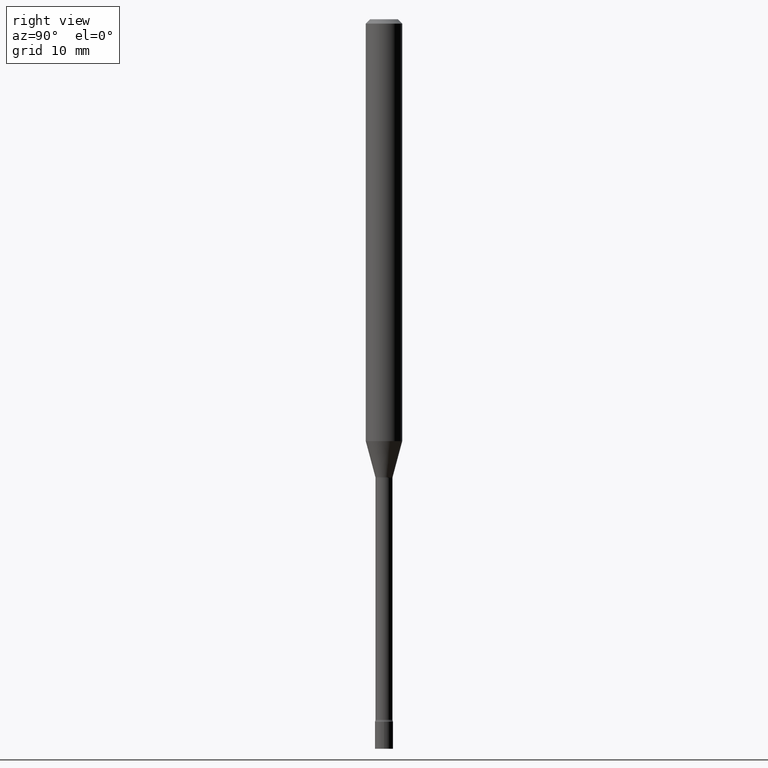
[diagram: clean part render]
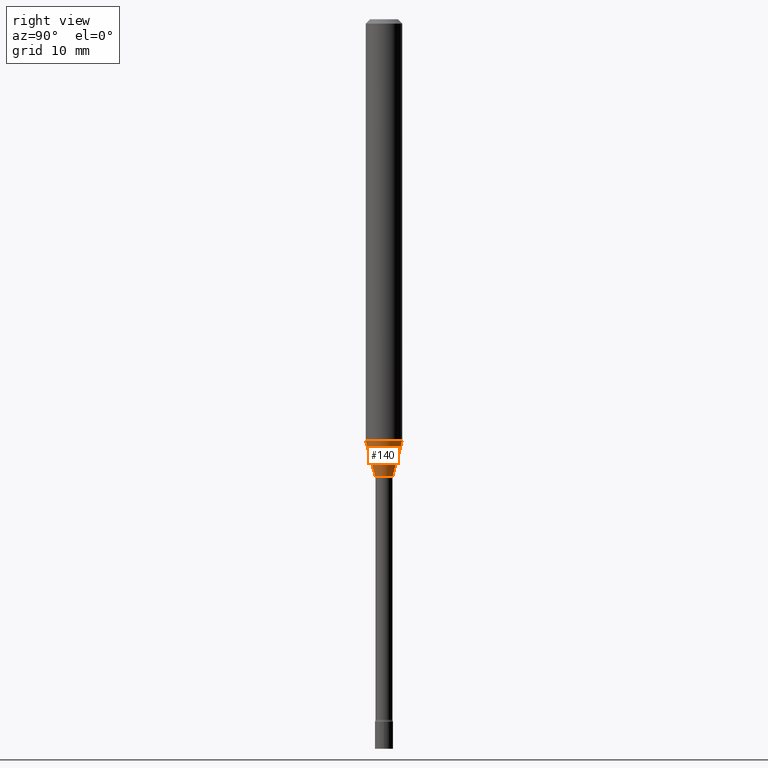
[diagram: same view with one face highlighted and labeled with its STEP entity id]
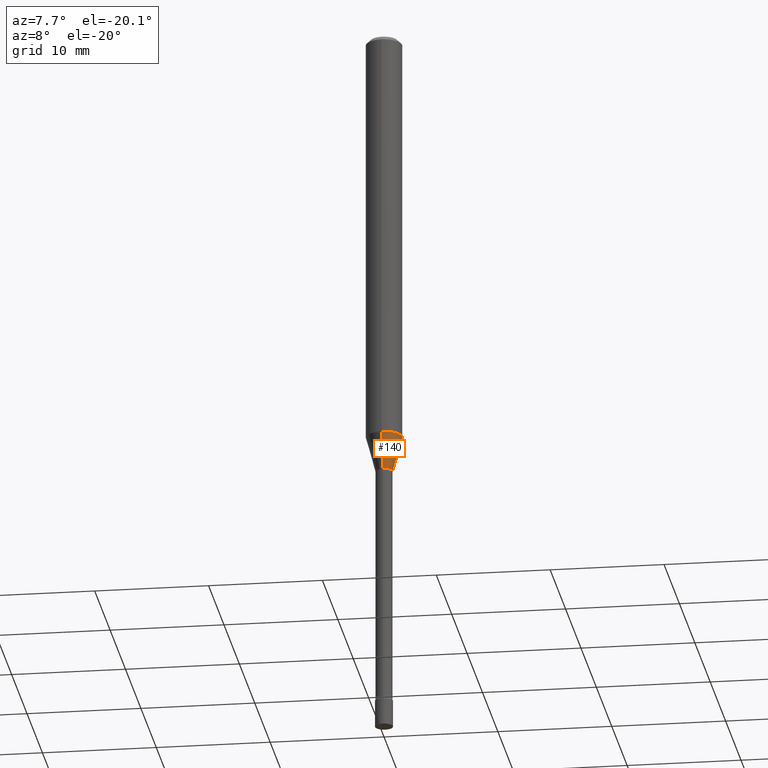
[diagram: same view with one face highlighted and labeled with its STEP entity id]
A machine part, right view. The second image highlights one B-rep face of the part: STEP entity #140.
A second angle (auxiliary view) of the same face is appended — the face is thin or edge-on in the first view.
In plain terms, the highlighted conical surface has half-angle 15 deg.
Its self-contained STEP definition (entity closure, byte-faithful):
#12 = DIRECTION ( 'NONE',  ( 1.839019923739594793E-15, 0.2588190451025241812, 0.9659258262890673130 ) ) ;
#13 = CIRCLE ( 'NONE', #235, 0.06250000000000000000 ) ;
#33 = ORIENTED_EDGE ( 'NONE', *, *, #179, .T. ) ;
#51 = CARTESIAN_POINT ( 'NONE',  ( -2.071224423039628932E-16, -0.02966111260566946239, -1.568092501787273108 ) ) ;
#53 = CARTESIAN_POINT ( 'NONE',  ( 2.107548809652071189E-16, 0.02966111260565850935, -1.568092501787273108 ) ) ;
#63 = DIRECTION ( 'NONE',  ( -2.445458496151855897E-29, 3.491496103397614401E-15, 1.000000000000000000 ) ) ;
#78 = VERTEX_POINT ( 'NONE', #51 ) ;
#88 = CARTESIAN_POINT ( 'NONE',  ( 3.834705131247706668E-29, -5.474988859757280570E-15, -1.568092501787273108 ) ) ;
#107 = DIRECTION ( 'NONE',  ( -2.445458496151855897E-29, 3.491496103397614401E-15, 1.000000000000000000 ) ) ;
#122 = CARTESIAN_POINT ( 'NONE',  ( 4.440892098500977205E-16, 0.06249999999999492767, -1.445536105567578167 ) ) ;
#125 = DIRECTION ( 'NONE',  ( -6.982962677686265922E-15, -1.000000000000000000, 4.370956789862821150E-15 ) ) ;
#131 = LINE ( 'NONE', #176, #289 ) ;
#140 = ADVANCED_FACE ( 'NONE', ( #264 ), #220, .T. ) ;
#176 = CARTESIAN_POINT ( 'NONE',  ( -2.071224423039628932E-16, -0.02966111260566946239, -1.568092501787273108 ) ) ;
#179 = EDGE_CURVE ( 'NONE', #239, #195, #256, .T. ) ;
#182 = AXIS2_PLACEMENT_3D ( 'NONE', #88, #107, #384 ) ;
#195 = VERTEX_POINT ( 'NONE', #122 ) ;
#220 = CONICAL_SURFACE ( 'NONE', #437, 0.02966111260566398414, 0.2617993877991495189 ) ;
#223 = CARTESIAN_POINT ( 'NONE',  ( 3.274220454076525799E-16, 0.02966111260565850935, -1.568092501787273108 ) ) ;
#235 = AXIS2_PLACEMENT_3D ( 'NONE', #327, #489, #125 ) ;
#237 = CARTESIAN_POINT ( 'NONE',  ( -4.364351673553564172E-16, -0.06250000000000507927, -1.445536105567577723 ) ) ;
#239 = VERTEX_POINT ( 'NONE', #223 ) ;
#252 = EDGE_CURVE ( 'NONE', #78, #239, #481, .T. ) ;
#256 = LINE ( 'NONE', #53, #367 ) ;
#264 = FACE_OUTER_BOUND ( 'NONE', #475, .T. ) ;
#271 = VERTEX_POINT ( 'NONE', #237 ) ;
#289 = VECTOR ( 'NONE', #293, 39.37007874015748854 ) ;
#293 = DIRECTION ( 'NONE',  ( -1.807323732225324617E-15, -0.2588190451025174088, 0.9659258262890690894 ) ) ;
#326 = EDGE_CURVE ( 'NONE', #78, #271, #131, .T. ) ;
#327 = CARTESIAN_POINT ( 'NONE',  ( 3.534998550854499363E-29, -5.047083679909760712E-15, -1.445536105567577945 ) ) ;
#367 = VECTOR ( 'NONE', #12, 39.37007874015748854 ) ;
#373 = DIRECTION ( 'NONE',  ( -6.982962677686265922E-15, -1.000000000000000000, 0.000000000000000000 ) ) ;
#382 = CARTESIAN_POINT ( 'NONE',  ( 3.834705131247706668E-29, -5.474988859757280570E-15, -1.568092501787273108 ) ) ;
#384 = DIRECTION ( 'NONE',  ( -6.982962677686265922E-15, -1.000000000000000000, 0.000000000000000000 ) ) ;
#423 = ORIENTED_EDGE ( 'NONE', *, *, #326, .F. ) ;
#437 = AXIS2_PLACEMENT_3D ( 'NONE', #382, #63, #373 ) ;
#456 = EDGE_CURVE ( 'NONE', #271, #195, #13, .T. ) ;
#475 = EDGE_LOOP ( 'NONE', ( #492, #33, #485, #423 ) ) ;
#481 = CIRCLE ( 'NONE', #182, 0.02966111260566398414 ) ;
#485 = ORIENTED_EDGE ( 'NONE', *, *, #456, .F. ) ;
#489 = DIRECTION ( 'NONE',  ( -2.445458496151855897E-29, 3.491496103397614401E-15, 1.000000000000000000 ) ) ;
#492 = ORIENTED_EDGE ( 'NONE', *, *, #252, .T. ) ;